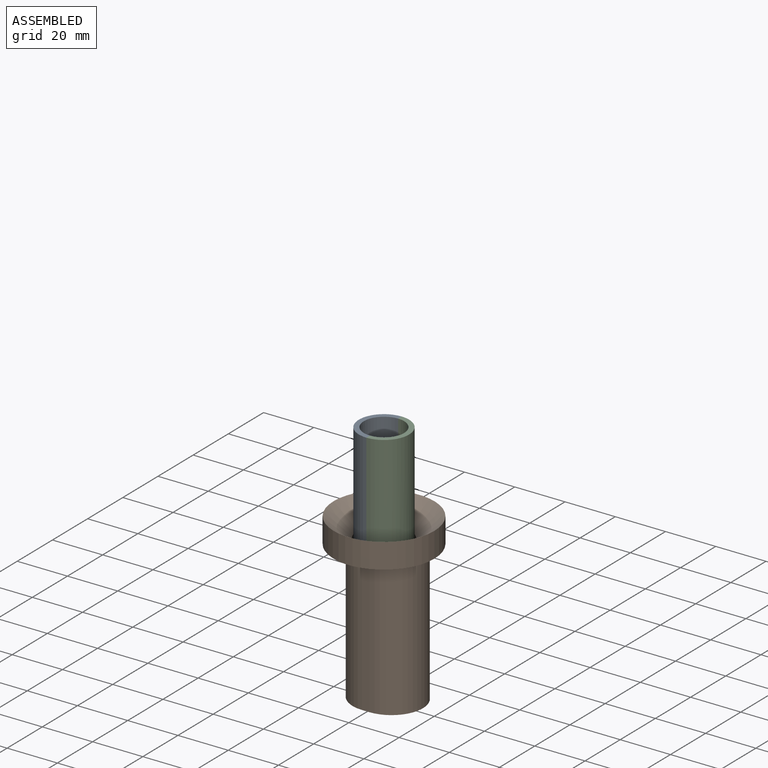
[diagram: assembled view]
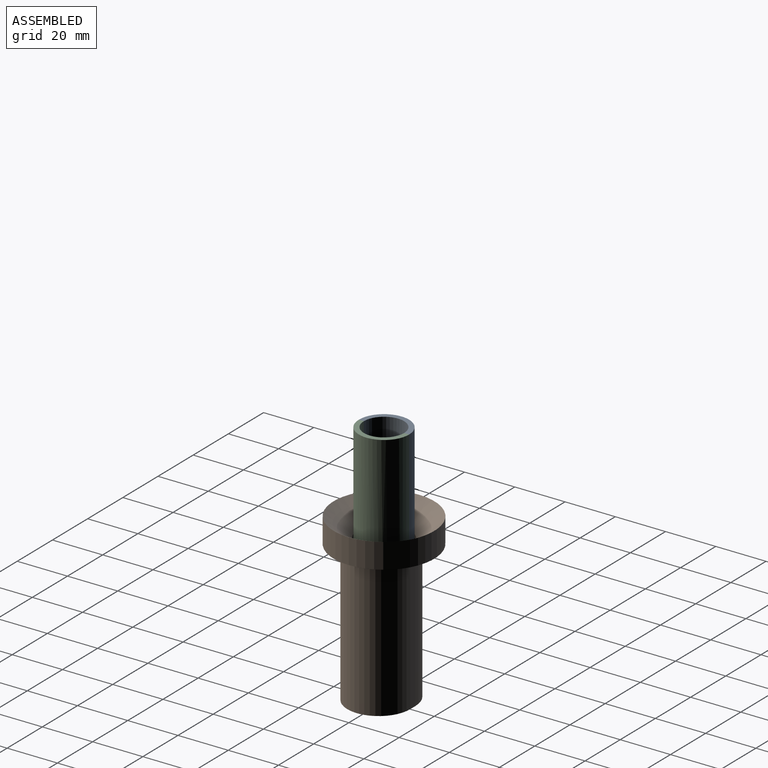
[diagram: assembled view, second angle]
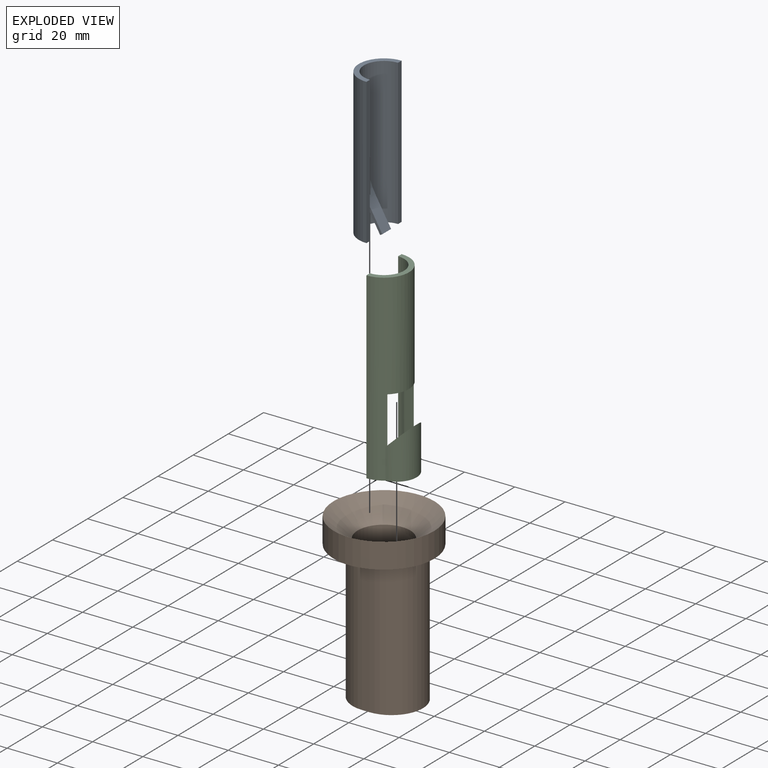
[diagram: exploded view]
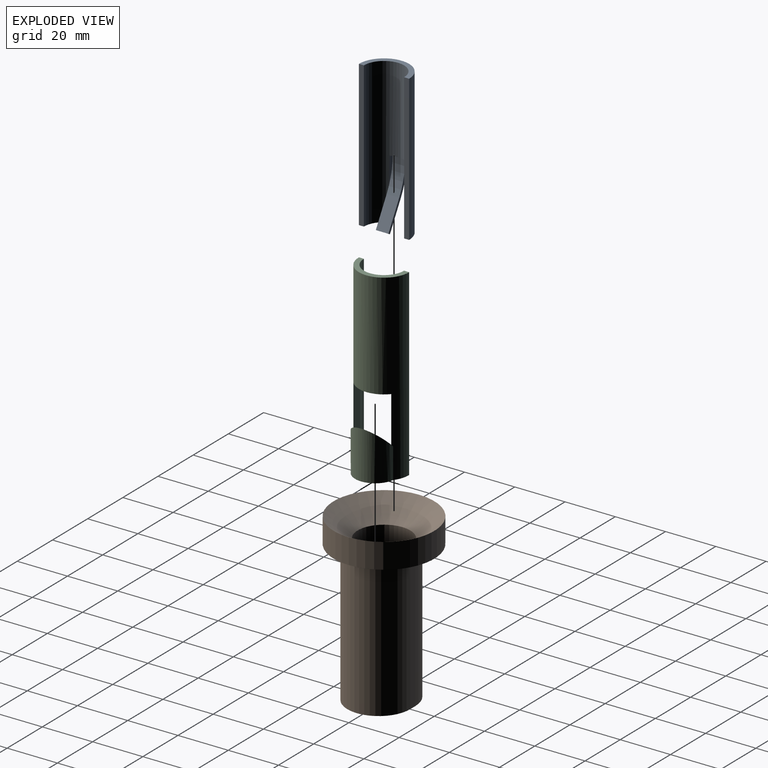
[diagram: exploded view, second angle]
ASSEMBLY  parts=3 mates=2
PART A: 17 faces, bbox 11.1x20x58 mm
  f0: cylinder r=10mm len=58mm, axis (0,0,-1), area 1675.8mm2, adj f1,f3,f4,f5,f6,f7,f8,f9
  f1: plane 9.54x7mm, normal (0,0,-1), area 22.2mm2, adj f0,f2,f6,f7
  f2: cylinder r=8mm len=58mm, axis (0,0,-1), area 1310mm2, adj f1,f3,f4,f5,f6,f7,f8,f9
  f3: plane 20x10mm, normal (0,0,1), area 56.5mm2, adj f0,f2,f5,f6
  f4: plane 9.54x7mm, normal (0,0,-1), area 22.2mm2, adj f0,f2,f5,f9
  f5: plane 58x2mm, normal (1,0,0), area 116mm2, adj f0,f2,f3,f4
  f6: plane 58x2mm, normal (1,0,0), area 116mm2, adj f0,f1,f2,f3
  f7: plane 24.02x2.12mm, normal (0,-1,0), area 51mm2, adj f0,f1,f2,f8
  f8: plane 6x2.58mm, normal (0,0,-1), area 7.2mm2, adj f0,f2,f7,f9,f10,f14,f15,f16
  f9: plane 24.02x2.12mm, normal (0,1,0), area 51mm2, adj f0,f2,f4,f8
  f10: cylinder r=26.5mm len=13.25mm, axis (0,1,0), area 69.4mm2, adj f8,f11,f15,f16
  f11: plane 10.65x6.15mm, normal (-0.87,0,-0.5), area 61.5mm2, adj f10,f12,f15,f16
  f12: plane 5x0.87mm, normal (0.5,0,-0.87), area 5mm2, adj f11,f13,f15,f16
  f13: plane 10.65x6.15mm, normal (0.87,0,0.5), area 61.5mm2, adj f12,f14,f15,f16
  f14: cylinder r=25.5mm len=12.75mm, axis (0,1,0), area 66.8mm2, adj f8,f13,f15,f16
  f15: plane 23.9x10.57mm, normal (0,-1,0), area 25.9mm2, adj f8,f10,f11,f12,f13,f14
  f16: plane 23.9x10.57mm, normal (0,1,0), area 25.9mm2, adj f8,f10,f11,f12,f13,f14
PART B: 15 faces, bbox 40.1x40.1x65 mm
  f0: plane 21x13.5mm, normal (0,0,-1), area 63mm2, adj f2,f7,f9,f10
  f1: cone r=10.5mm half-angle=50deg, axis (0,0,1), area 1193.9mm2, adj f2,f4
  f2: cylinder r=10.5mm len=54mm, axis (0,0,1), area 1847.3mm2, adj f0,f1,f7,f10,f13
  f3: plane 40.07x40.07mm, normal (0,0,-1), area 695mm2, adj f4,f5,f6,f11,f12
  f4: cylinder r=20.03mm len=40.07mm, axis (0,0,1), area 1258.8mm2, adj f1,f3
  f5: cylinder r=12.5mm len=55mm, axis (0,0,-1), area 2159.8mm2, adj f3,f6,f8,f11
  f6: plane 55x3mm, normal (0,-1,0), area 165mm2, adj f3,f5,f8,f12
  f7: plane 52x3mm, normal (0,1,0), area 156mm2, adj f0,f2,f9,f13
  f8: plane 28x25mm, normal (0,0,-1), area 338.9mm2, adj f5,f6,f11,f12,f14
  f9: cylinder r=10.5mm len=52mm, axis (0,0,-1), area 1715.3mm2, adj f0,f7,f10,f13
  f10: plane 52x3mm, normal (0,-1,0), area 156mm2, adj f0,f2,f9,f13
  f11: plane 55x3mm, normal (0,1,0), area 165mm2, adj f3,f5,f8,f12
  f12: cylinder r=12.5mm len=55mm, axis (0,0,-1), area 2159.8mm2, adj f3,f6,f8,f11
  f13: plane 24x21mm, normal (0,0,1), area 182.4mm2, adj f2,f7,f9,f10,f14
  f14: cylinder r=8.5mm len=17mm, axis (0,0,-1), area 160.2mm2, adj f8,f13
PART C: 12 faces, bbox 16x20x73 mm
  f0: cylinder r=8mm len=73mm, axis (0,0,-1), area 1226.7mm2, adj f2,f3,f4,f5,f6,f7,f8,f10
  f1: cylinder r=10mm len=73mm, axis (0,0,-1), area 1751.1mm2, adj f2,f3,f4,f5,f6,f7,f8,f9
  f2: plane 22.22x3.83mm, normal (0,1,0), area 77.8mm2, adj f0,f1,f8,f11
  f3: plane 22.22x3.83mm, normal (0,-1,0), area 77.8mm2, adj f0,f1,f8,f11
  f4: plane 20x10mm, normal (0,0,1), area 56.5mm2, adj f0,f1,f5,f6
  f5: plane 73x2mm, normal (-1,0,0), area 146mm2, adj f0,f1,f4,f7
  f6: plane 73x2mm, normal (-1,0,0), area 146mm2, adj f0,f1,f4,f7
  f7: plane 20x16mm, normal (0,0,-1), area 218.8mm2, adj f0,f1,f5,f6,f9,f10
  f8: plane 15x7.22mm, normal (0,0,-1), area 35.8mm2, adj f0,f1,f2,f3
  f9: cylinder r=8mm len=19.02mm, axis (0,0,-1), area 379mm2, adj f1,f7,f11
  f10: cylinder r=8mm len=15.2mm, axis (0,0,-1), area 98.9mm2, adj f0,f7,f11
  f11: plane 16.01x16.01mm, normal (-0.71,0,0.71), area 280mm2, adj f0,f1,f2,f3,f9,f10
PLACE A t=(0,0,24)mm
PLACE B at identity fixed
PLACE C t=(0,0,24)mm
MATE slider C.f1 <-> B.f1  axis (0,0,1) through (0,0,66)mm
MATE slider A.f0 <-> B.f1  axis (0,0,1) through (0,0,66)mm
